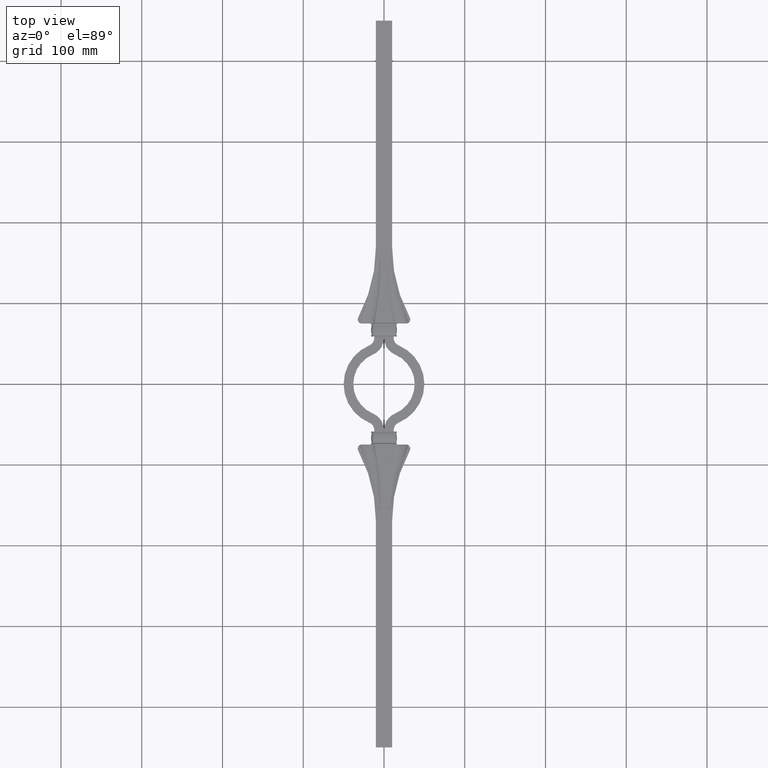
[diagram: clean part render]
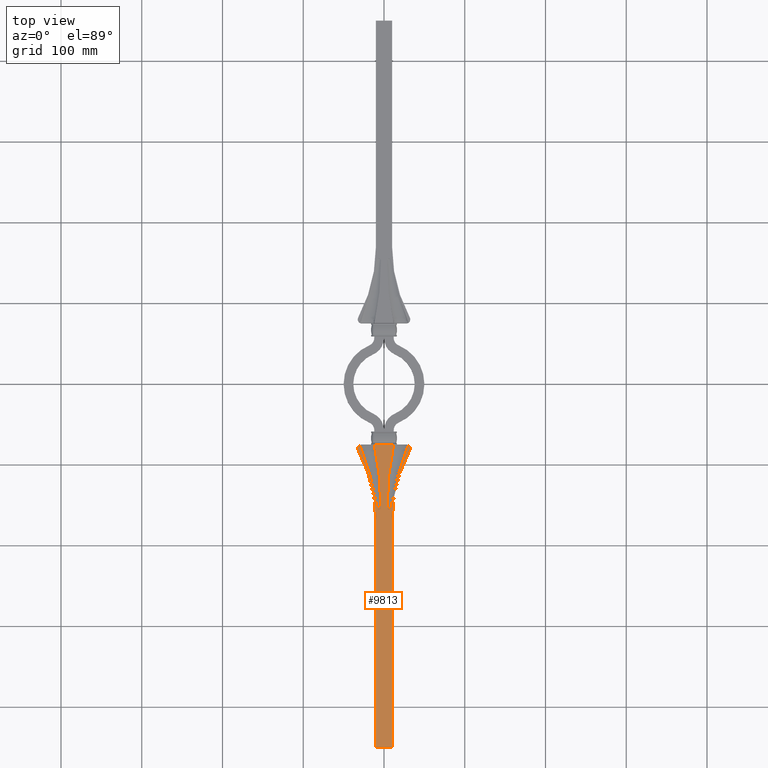
[diagram: same view with one face highlighted and labeled with its STEP entity id]
A machine part, top view. The second image highlights one B-rep face of the part: STEP entity #9813.
In plain terms, the highlighted planar face has unit normal (0, 0, -1).
Its self-contained STEP definition (entity closure, byte-faithful):
#128 = LINE ( 'NONE', #19103, #2792 ) ;
#148 = CARTESIAN_POINT ( 'NONE',  ( 31.91176470588233371, -82.35294117647066514, 5.000000000000000000 ) ) ;
#299 = CARTESIAN_POINT ( 'NONE',  ( 3.965623963951216524, -154.4462280824374432, 4.999999999999998224 ) ) ;
#496 = CARTESIAN_POINT ( 'NONE',  ( 5.135570416108285130, -154.9981774773089569, 5.000000000000000888 ) ) ;
#520 = CARTESIAN_POINT ( 'NONE',  ( -13.04686534027730715, -130.6835292798024284, 5.000000000000001776 ) ) ;
#568 = CARTESIAN_POINT ( 'NONE',  ( 7.926180279954286867, -154.7643624197660301, 4.999963996615838013 ) ) ;
#591 = DIRECTION ( 'NONE',  ( -0.000000000000000000, -0.000000000000000000, -1.000000000000000000 ) ) ;
#655 = CARTESIAN_POINT ( 'NONE',  ( 6.799162393135026683, -155.0000000000001705, 5.000000000001240785 ) ) ;
#744 = CARTESIAN_POINT ( 'NONE',  ( 7.869971688072390670, -154.8037052806284635, 4.999966354518317502 ) ) ;
#770 = EDGE_CURVE ( 'NONE', #19440, #10976, #20119, .T. ) ;
#804 = B_SPLINE_CURVE_WITH_KNOTS ( 'NONE', 3,
 ( #13560, #4018, #9698, #9773, #22862, #11600, #9850, #22938, #15457, #2377, #299, #15535, #19873, #12532, #7666, #5605, #2245, #13236, #16361, #13120, #8166, #3150, #24298, #1758, #17777, #2966, #9044, #5182, #17969, #24413, #22634, #496, #8086, #13597 ),
 .UNSPECIFIED., .F., .F.,
 ( 4, 2, 2, 2, 2, 2, 2, 2, 2, 1, 2, 2, 2, 2, 1, 2, 2, 4 ),
 ( 0.000000000000000000, 0.1250000000002426392, 0.1875000000003466394, 0.2187500000003986256, 0.2343750000004064249, 0.2500000000004142242, 0.3125000000003543832, 0.3750000000002945977, 0.4375000000002347567, 0.4687500000002143286, 0.4843750000002041700, 0.5000000000001939560, 0.6250000000001428857, 0.6875000000001129097, 0.7187500000000974776, 0.7343750000000901501, 0.7500000000000828226, 1.000000000000000000 ),
 .UNSPECIFIED. ) ;
#837 = VERTEX_POINT ( 'NONE', #6536 ) ;
#888 = CIRCLE ( 'NONE', #20988, 5.000000000000007994 ) ;
#915 = CARTESIAN_POINT ( 'NONE',  ( 7.211589345904941162, -154.9852450227280940, 4.999997638428290259 ) ) ;
#958 = CARTESIAN_POINT ( 'NONE',  ( 13.04663174469290254, -130.6846083233393756, 5.000000000000047073 ) ) ;
#1015 = CARTESIAN_POINT ( 'NONE',  ( -3.941527049321892129, -147.2738070828576440, 4.999999999999998224 ) ) ;
#1032 = VECTOR ( 'NONE', #21166, 1000.000000000000000 ) ;
#1074 = VERTEX_POINT ( 'NONE', #148 ) ;
#1095 = CARTESIAN_POINT ( 'NONE',  ( -7.282119413864290181, -101.0639367666828150, 5.000000000000000000 ) ) ;
#1194 = CARTESIAN_POINT ( 'NONE',  ( -8.188882628209363190, -154.4623339231687567, 4.999998515358314854 ) ) ;
#1334 = AXIS2_PLACEMENT_3D ( 'NONE', #13166, #1909, #13088 ) ;
#1364 = CARTESIAN_POINT ( 'NONE',  ( -8.369846276095589843, -153.9566048082628242, 5.000000000000015987 ) ) ;
#1437 = CARTESIAN_POINT ( 'NONE',  ( -5.063771536652758698, -154.9900956607324645, 5.000038404316325291 ) ) ;
#1509 = EDGE_CURVE ( 'NONE', #2531, #9342, #13613, .T. ) ;
#1522 = CARTESIAN_POINT ( 'NONE',  ( -4.021482543813087673, -154.5441743983841434, 5.000007550614006036 ) ) ;
#1605 = CARTESIAN_POINT ( 'NONE',  ( -4.969354628159481813, -154.9835673242953646, 5.000002536696727340 ) ) ;
#1688 = CARTESIAN_POINT ( 'NONE',  ( -4.737584176409249892, -154.9579853146912285, 5.000153453337676801 ) ) ;
#1692 = CARTESIAN_POINT ( 'NONE',  ( -7.831121151077348408, -154.8258042688642888, 5.000010660083647807 ) ) ;
#1758 = CARTESIAN_POINT ( 'NONE',  ( 4.551413117096624106, -154.9163942532572946, 4.999967967209959063 ) ) ;
#1766 = CARTESIAN_POINT ( 'NONE',  ( -4.992899276903014716, -154.9854016029280217, 5.000010088599545099 ) ) ;
#1802 = CARTESIAN_POINT ( 'NONE',  ( -27.47195296059224034, -81.94771305812834328, 5.000000000000002665 ) ) ;
#1853 = EDGE_CURVE ( 'NONE', #24118, #14520, #16663, .T. ) ;
#1909 = DIRECTION ( 'NONE',  ( 0.000000000000000000, -0.000000000000000000, 1.000000000000000000 ) ) ;
#2245 = CARTESIAN_POINT ( 'NONE',  ( 4.215676738443235649, -154.7531744206347071, 4.999951572459591986 ) ) ;
#2377 = CARTESIAN_POINT ( 'NONE',  ( 3.961980872138301191, -154.4387205353516777, 4.999996800281025777 ) ) ;
#2406 = EDGE_CURVE ( 'NONE', #10976, #837, #5306, .T. ) ;
#2463 = CARTESIAN_POINT ( 'NONE',  ( -5.524884413910358560, -155.0000000000000000, 5.000000000000000000 ) ) ;
#2531 = VERTEX_POINT ( 'NONE', #20714 ) ;
#2581 = CARTESIAN_POINT ( 'NONE',  ( -29.90578352800346096, -75.61682699219076653, 5.000000000000000888 ) ) ;
#2646 = CARTESIAN_POINT ( 'NONE',  ( 7.357889261302469563, -154.9717791552320705, 5.000000000000000888 ) ) ;
#2792 = VECTOR ( 'NONE', #15977, 1000.000000000000000 ) ;
#2850 = CARTESIAN_POINT ( 'NONE',  ( 18.89638322145837890, -107.6835420494722513, 5.000000000000001776 ) ) ;
#2966 = CARTESIAN_POINT ( 'NONE',  ( 4.740170772975628388, -154.9564682262032136, 4.999966412021719542 ) ) ;
#3150 = CARTESIAN_POINT ( 'NONE',  ( 4.374070906003847625, -154.8467629935844911, 5.000000000000001776 ) ) ;
#3246 = CARTESIAN_POINT ( 'NONE',  ( -8.201269694154182943, -154.4404845708103551, 4.999981670895587094 ) ) ;
#3254 = CARTESIAN_POINT ( 'NONE',  ( 29.90578352800346451, -75.61682699219078074, 5.000000000000000000 ) ) ;
#3410 = CARTESIAN_POINT ( 'NONE',  ( -8.232281611238894570, -154.3805999419486454, 4.999883108988804281 ) ) ;
#3480 = CIRCLE ( 'NONE', #17874, 5.000000000000007994 ) ;
#3481 = CARTESIAN_POINT ( 'NONE',  ( -4.078422396638333502, -154.6226623556130164, 5.000017349464791927 ) ) ;
#3557 = CARTESIAN_POINT ( 'NONE',  ( -4.552195823899769067, -154.9143415389822565, 5.000037379747007016 ) ) ;
#3609 = CARTESIAN_POINT ( 'NONE',  ( 9.435256655440054985, -87.99521046313290640, 4.999999999999998224 ) ) ;
#3629 = CARTESIAN_POINT ( 'NONE',  ( -4.403627954130869604, -154.8602275226872393, 4.999995709682878875 ) ) ;
#3691 = VERTEX_POINT ( 'NONE', #5280 ) ;
#3769 = CARTESIAN_POINT ( 'NONE',  ( 7.282036358220088879, -101.0645038266207365, 4.999999999999999112 ) ) ;
#3838 = CARTESIAN_POINT ( 'NONE',  ( 4.474168269533989495, -130.7263189135368293, 5.000000000000000888 ) ) ;
#4018 = CARTESIAN_POINT ( 'NONE',  ( 3.848617347009392731, -154.0013132885745790, 4.999999999999997335 ) ) ;
#4080 = ORIENTED_EDGE ( 'NONE', *, *, #17824, .F. ) ;
#4298 = CARTESIAN_POINT ( 'NONE',  ( -196.2500000000003695, -154.9999999999999716, 5.000000000000000000 ) ) ;
#4302 = CARTESIAN_POINT ( 'NONE',  ( 8.268016533100878362, -154.3018457595693178, 4.999975786428982438 ) ) ;
#4401 = B_SPLINE_CURVE_WITH_KNOTS ( 'NONE', 3,
 ( #10215, #655, #15646, #13994, #4458, #11934, #19512, #8230, #915, #17452, #10044, #2646, #17618, #23212, #8402, #10132, #21417, #6257, #15895, #19684, #744, #568, #23372, #23459, #12101, #13829, #11860, #14078, #6179, #19441, #9965, #15568, #19356, #23293, #12015, #8148, #4302, #13906, #15810, #8076, #21258, #13746, #4534 ),
 .UNSPECIFIED., .F., .F.,
 ( 4, 2, 2, 2, 2, 2, 2, 2, 2, 2, 2, 2, 2, 2, 2, 2, 2, 2, 1, 2, 2, 4 ),
 ( 0.000000000000000000, 0.1249999999999136246, 0.1874999999998710198, 0.2187499999998497313, 0.2343749999998376854, 0.2499999999998256395, 0.3749999999997271072, 0.4374999999996784239, 0.4687499999996540545, 0.4999999999996296851, 0.5624999999995966560, 0.5937499999995792255, 0.6249999999995616839, 0.6874999999995267119, 0.7187499999995083932, 0.7343749999994986233, 0.7499999999994888533, 0.8124999999995522471, 0.8437499999995834443, 0.8593749999995990985, 0.8749999999996147526, 1.000000000000000000 ),
 .UNSPECIFIED. ) ;
#4403 = DIRECTION ( 'NONE',  ( -1.000000000000000000, 0.000000000000000000, 0.000000000000000000 ) ) ;
#4458 = CARTESIAN_POINT ( 'NONE',  ( 7.076278301498744483, -154.9937461767659670, 5.000005102248681332 ) ) ;
#4534 = CARTESIAN_POINT ( 'NONE',  ( 8.369848107284010297, -153.9566044168722101, 5.000000000001072920 ) ) ;
#4670 = EDGE_CURVE ( 'NONE', #22282, #24118, #21754, .T. ) ;
#4676 = ORIENTED_EDGE ( 'NONE', *, *, #19343, .F. ) ;
#4741 = CARTESIAN_POINT ( 'NONE',  ( 20.87496705193597180, -101.1957691935674291, 5.000000000000000000 ) ) ;
#4797 = CARTESIAN_POINT ( 'NONE',  ( -4.066255454649413181, -140.6514932256762336, 5.000000000000000888 ) ) ;
#4876 = CARTESIAN_POINT ( 'NONE',  ( -10.65418433901768758, -81.48515730548123770, 4.999999999999999112 ) ) ;
#4961 = CARTESIAN_POINT ( 'NONE',  ( -4.474201774496942008, -130.7256328451458955, 5.000000000000000000 ) ) ;
#5043 = B_SPLINE_CURVE_WITH_KNOTS ( 'NONE', 3,
 ( #19889, #12232, #19642, #958, #16029, #21376, #17662, #14123, #2850, #4741, #17911, #21702, #23596, #12309, #20050, #3254 ),
 .UNSPECIFIED., .F., .F.,
 ( 4, 2, 2, 2, 2, 2, 2, 4 ),
 ( 0.001063238149677896149, 0.02141010717645206937, 0.03158354168983910915, 0.04175697620322620096, 0.05193041071661328584, 0.06210384523000037765, 0.07227727974338746253, 0.08245071425677455434 ),
 .UNSPECIFIED. ) ;
#5182 = CARTESIAN_POINT ( 'NONE',  ( 4.853888699188068756, -154.9723366668225992, 4.999989232610434264 ) ) ;
#5280 = CARTESIAN_POINT ( 'NONE',  ( 29.90578352800346451, -75.61682699219078074, 5.000000000000000000 ) ) ;
#5291 = CARTESIAN_POINT ( 'NONE',  ( -4.959337764658437564, -154.9827470687102107, 5.000000000000000888 ) ) ;
#5297 = PLANE ( 'NONE',  #17614 ) ;
#5299 = CARTESIAN_POINT ( 'NONE',  ( -8.193854688318371160, -154.4536406679349341, 4.999993193936294489 ) ) ;
#5306 = B_SPLINE_CURVE_WITH_KNOTS ( 'NONE', 3,
 ( #5828, #19012, #22392, #3609, #24367, #3769, #11989, #14571, #24209, #22607, #3838, #15034, #11262, #17008 ),
 .UNSPECIFIED., .F., .F.,
 ( 4, 2, 2, 2, 2, 2, 4 ),
 ( 0.000000000000000000, 0.009934312361116222692, 0.01986862472223244538, 0.03973724944446484914, 0.04967156180558107009, 0.05960587416669729105, 0.07947449888892964276 ),
 .UNSPECIFIED. ) ;
#5375 = CARTESIAN_POINT ( 'NONE',  ( -3.983202647285003284, -154.4799712063336870, 4.999999291928923562 ) ) ;
#5455 = CARTESIAN_POINT ( 'NONE',  ( -4.487067852457460759, -154.8930011947112462, 5.000000347583217319 ) ) ;
#5537 = CARTESIAN_POINT ( 'NONE',  ( -196.2500000000003695, -170.0000000000000000, 5.000000000000000000 ) ) ;
#5605 = CARTESIAN_POINT ( 'NONE',  ( 4.178185790780713837, -154.7233401966931865, 5.000000000000000000 ) ) ;
#5611 = CARTESIAN_POINT ( 'NONE',  ( -3.850103109401592505, -153.8959823035247325, 5.000000000007732481 ) ) ;
#5711 = EDGE_CURVE ( 'NONE', #1074, #11700, #23722, .T. ) ;
#5716 = B_SPLINE_CURVE_WITH_KNOTS ( 'NONE', 3,
 ( #11148, #7352, #22252, #10823, #12704, #1437, #9079, #13024, #1766, #1605, #5291, #16646, #1688, #14832, #3557, #5455, #14593, #18385, #3629, #18549, #7103, #20276, #12788, #20354, #10905, #3481, #24058, #1522, #16571, #7182, #5375, #7267, #20432, #20929, #5940, #13426, #5611 ),
 .UNSPECIFIED., .F., .F.,
 ( 4, 2, 2, 2, 2, 2, 2, 2, 1, 2, 2, 2, 2, 2, 2, 2, 2, 2, 4 ),
 ( 0.000000000000000000, 0.1249999999999659439, 0.1874999999999489297, 0.2187499999999409639, 0.2343749999999382161, 0.2499999999999354960, 0.3749999999998900879, 0.4374999999998679390, 0.4687499999998568367, 0.4843749999998583911, 0.4999999999998598899, 0.5624999999998678835, 0.6249999999998757660, 0.6874999999998837596, 0.7187499999998877565, 0.7343749999998900879, 0.7499999999998923084, 0.8749999999999461542, 1.000000000000000000 ),
 .UNSPECIFIED. ) ;
#5828 = CARTESIAN_POINT ( 'NONE',  ( 11.99556631910429338, -74.99999999999998579, 4.999999999999999112 ) ) ;
#5856 = EDGE_CURVE ( 'NONE', #7450, #2531, #128, .T. ) ;
#5940 = CARTESIAN_POINT ( 'NONE',  ( -3.859373283327270698, -154.1051406099595056, 4.999984246217923811 ) ) ;
#6179 = CARTESIAN_POINT ( 'NONE',  ( 8.130164386421029121, -154.5543364041792813, 4.999981418056808735 ) ) ;
#6257 = CARTESIAN_POINT ( 'NONE',  ( 7.750218678783158843, -154.8663817257325945, 4.999993462028319513 ) ) ;
#6536 = CARTESIAN_POINT ( 'NONE',  ( 3.850100905047181499, -153.8959823676001974, 5.000000000000000888 ) ) ;
#6962 = ORIENTED_EDGE ( 'NONE', *, *, #1853, .F. ) ;
#7035 = CARTESIAN_POINT ( 'NONE',  ( -8.132025910613613462, -154.5530388366627506, 4.999980909498882298 ) ) ;
#7103 = CARTESIAN_POINT ( 'NONE',  ( -4.338052052215489063, -154.8301070446215704, 5.000000000000000000 ) ) ;
#7182 = CARTESIAN_POINT ( 'NONE',  ( -3.995543731210860816, -154.5018379909814712, 4.999999695980231529 ) ) ;
#7267 = CARTESIAN_POINT ( 'NONE',  ( -3.976202287302884386, -154.4668616728823451, 4.999999999999999112 ) ) ;
#7352 = CARTESIAN_POINT ( 'NONE',  ( -5.425226360417427784, -155.0000000000000000, 4.999999999957632113 ) ) ;
#7388 = CARTESIAN_POINT ( 'NONE',  ( -28.66465569825735926, -78.77288485077676228, 4.999999999999997335 ) ) ;
#7404 = DIRECTION ( 'NONE',  ( -1.362997016838919825E-16, -1.000000000000000000, 0.000000000000000000 ) ) ;
#7435 = DIRECTION ( 'NONE',  ( 0.000000000000000000, 0.000000000000000000, -1.000000000000000000 ) ) ;
#7450 = VERTEX_POINT ( 'NONE', #22999 ) ;
#7518 = CARTESIAN_POINT ( 'NONE',  ( -7.871026687478063444, -154.8020627131309652, 4.999997389408848747 ) ) ;
#7595 = CARTESIAN_POINT ( 'NONE',  ( -8.045622032347242936, -154.6580471216138619, 4.999993685543806521 ) ) ;
#7624 = CARTESIAN_POINT ( 'NONE',  ( -196.2500000000003695, -170.0000000000000000, 5.000000000000000000 ) ) ;
#7666 = CARTESIAN_POINT ( 'NONE',  ( 4.109133004302524483, -154.6574875651803040, 4.999999999999998224 ) ) ;
#7756 = LINE ( 'NONE', #18358, #13345 ) ;
#7868 = CARTESIAN_POINT ( 'NONE',  ( -16.17235635153362949, -117.4835181931385932, 5.000000000000000000 ) ) ;
#8025 = EDGE_CURVE ( 'NONE', #8082, #19670, #4401, .T. ) ;
#8076 = CARTESIAN_POINT ( 'NONE',  ( 8.294102886076400338, -154.2338134458151160, 5.000000000000001776 ) ) ;
#8082 = VERTEX_POINT ( 'NONE', #10630 ) ;
#8086 = CARTESIAN_POINT ( 'NONE',  ( 5.327280271678336732, -155.0000000000000000, 4.999999999981433518 ) ) ;
#8090 = ORIENTED_EDGE ( 'NONE', *, *, #4670, .F. ) ;
#8148 = CARTESIAN_POINT ( 'NONE',  ( 8.254102737150246227, -154.3339432849012098, 4.999965063517867847 ) ) ;
#8166 = CARTESIAN_POINT ( 'NONE',  ( 4.361624020661886370, -154.8407700689843978, 4.999996059942182214 ) ) ;
#8230 = CARTESIAN_POINT ( 'NONE',  ( 7.200383923119862750, -154.9861180574261823, 4.999996262923906087 ) ) ;
#8402 = CARTESIAN_POINT ( 'NONE',  ( 7.628335715910177228, -154.9129244956912714, 4.999935402762493375 ) ) ;
#8423 = AXIS2_PLACEMENT_3D ( 'NONE', #7624, #15029, #20795 ) ;
#8515 = VERTEX_POINT ( 'NONE', #2463 ) ;
#8555 = ORIENTED_EDGE ( 'NONE', *, *, #24178, .F. ) ;
#8666 = CARTESIAN_POINT ( 'NONE',  ( -11.99556631910429161, -75.00000000000000000, 5.000000000000000000 ) ) ;
#8766 = CARTESIAN_POINT ( 'NONE',  ( -8.276616460588110513, -154.2807237659062594, 4.999755788964489689 ) ) ;
#8824 = CARTESIAN_POINT ( 'NONE',  ( -10.94614546052817516, -140.6380072406970498, 5.000000000000000888 ) ) ;
#8847 = CARTESIAN_POINT ( 'NONE',  ( -8.350583618383449647, -154.0554475477909762, 5.000000000000023093 ) ) ;
#8907 = CARTESIAN_POINT ( 'NONE',  ( -8.369846276095589843, -153.9566048082628242, 5.000000000000015987 ) ) ;
#9044 = CARTESIAN_POINT ( 'NONE',  ( 4.815535316719543601, -154.9674045013782973, 4.999980697962675968 ) ) ;
#9079 = CARTESIAN_POINT ( 'NONE',  ( -5.040096321250082667, -154.9886875640189885, 5.000029403370739089 ) ) ;
#9094 = EDGE_LOOP ( 'NONE', ( #20250, #20525, #10138, #13407, #12396, #12288, #20379, #14670, #21471, #16131, #4080, #12734, #21338, #4676, #8555, #9638, #6962, #8090 ) ) ;
#9342 = VERTEX_POINT ( 'NONE', #9677 ) ;
#9352 = B_SPLINE_CURVE_WITH_KNOTS ( 'NONE', 3,
 ( #19785, #1015, #4797, #4961, #21753, #18124, #19944, #12367, #1095, #14253, #16179, #4876, #18044, #8666 ),
 .UNSPECIFIED., .F., .F.,
 ( 4, 2, 2, 2, 2, 2, 4 ),
 ( 0.001104118336523353524, 0.02097253915627313170, 0.03090674956614806318, 0.04084095997602300160, 0.06070938079577280905, 0.07064359120564771277, 0.08057780161552259568 ),
 .UNSPECIFIED. ) ;
#9409 = CARTESIAN_POINT ( 'NONE',  ( -6.704089015590581013, -155.0000000000000000, 5.000000000000000000 ) ) ;
#9638 = ORIENTED_EDGE ( 'NONE', *, *, #15806, .T. ) ;
#9677 = CARTESIAN_POINT ( 'NONE',  ( -31.91176470588235503, -82.35294117647059409, 5.000000000000000000 ) ) ;
#9698 = CARTESIAN_POINT ( 'NONE',  ( 3.859407661232425735, -154.1053547134688131, 4.999975483018065603 ) ) ;
#9773 = CARTESIAN_POINT ( 'NONE',  ( 3.891226762359575986, -154.2485177527530311, 4.999927734278702296 ) ) ;
#9813 = ADVANCED_FACE ( 'NONE', ( #17125 ), #5297, .F. ) ;
#9850 = CARTESIAN_POINT ( 'NONE',  ( 3.935462048286683334, -154.3793295323155803, 4.999962334848924606 ) ) ;
#9965 = CARTESIAN_POINT ( 'NONE',  ( 8.156820883255040400, -154.5147736071453721, 4.999991580263911217 ) ) ;
#10044 = CARTESIAN_POINT ( 'NONE',  ( 7.243575453143122900, -154.9825423240127975, 5.000000000000001776 ) ) ;
#10046 = CARTESIAN_POINT ( 'NONE',  ( -6.704089015590581013, -155.0000000000000000, 5.000000000000000000 ) ) ;
#10132 = CARTESIAN_POINT ( 'NONE',  ( 7.690211246098844988, -154.8910067185260289, 4.999965170084887944 ) ) ;
#10138 = ORIENTED_EDGE ( 'NONE', *, *, #5856, .F. ) ;
#10215 = CARTESIAN_POINT ( 'NONE',  ( 6.704073158307038760, -155.0000000000000000, 5.000000000000000000 ) ) ;
#10630 = CARTESIAN_POINT ( 'NONE',  ( 6.704073158307038760, -155.0000000000000000, 5.000000000000000000 ) ) ;
#10823 = CARTESIAN_POINT ( 'NONE',  ( -5.182838966738153808, -154.9955456612415503, 5.000064313099621849 ) ) ;
#10828 = CARTESIAN_POINT ( 'NONE',  ( -8.075246736465544473, -154.6249011140212133, 4.999983852107556359 ) ) ;
#10838 = CARTESIAN_POINT ( 'NONE',  ( 9.999999999999998224, -450.0000000000000000, 5.000000000000000000 ) ) ;
#10905 = CARTESIAN_POINT ( 'NONE',  ( -4.109798702775242951, -154.6580963423483581, 4.999999999999998224 ) ) ;
#10976 = VERTEX_POINT ( 'NONE', #22017 ) ;
#10999 = CARTESIAN_POINT ( 'NONE',  ( -7.079083305676154403, -154.9980688803117914, 4.999999999999999112 ) ) ;
#11072 = CARTESIAN_POINT ( 'NONE',  ( -7.306840426404083821, -154.9761545354650707, 4.999994523428433091 ) ) ;
#11148 = CARTESIAN_POINT ( 'NONE',  ( -5.524884413910358560, -155.0000000000000000, 5.000000000000000000 ) ) ;
#11231 = CARTESIAN_POINT ( 'NONE',  ( -7.982070357511826586, -154.7206889019596474, 5.000000000000000000 ) ) ;
#11262 = CARTESIAN_POINT ( 'NONE',  ( 3.941525040750626374, -147.2739525905449796, 5.000000000000002665 ) ) ;
#11305 = EDGE_CURVE ( 'NONE', #19670, #3691, #5043, .T. ) ;
#11421 = VERTEX_POINT ( 'NONE', #10838 ) ;
#11600 = CARTESIAN_POINT ( 'NONE',  ( 3.927294459486234235, -154.3585275621808250, 4.999949172084273918 ) ) ;
#11661 = CARTESIAN_POINT ( 'NONE',  ( -15.33948263790184008, -120.7713928348293138, 5.000000000000000888 ) ) ;
#11672 = EDGE_CURVE ( 'NONE', #3691, #1074, #888, .T. ) ;
#11700 = VERTEX_POINT ( 'NONE', #21270 ) ;
#11860 = CARTESIAN_POINT ( 'NONE',  ( 8.074032945165239283, -154.6275028510471259, 4.999980413023869197 ) ) ;
#11934 = CARTESIAN_POINT ( 'NONE',  ( 7.144163338439147637, -154.9900050189272918, 4.999997463477654946 ) ) ;
#11989 = CARTESIAN_POINT ( 'NONE',  ( 6.383646114910948022, -107.6290771002282440, 4.999999999999997335 ) ) ;
#12015 = CARTESIAN_POINT ( 'NONE',  ( 8.225190650981872409, -154.3965307603946258, 4.999963442536571989 ) ) ;
#12101 = CARTESIAN_POINT ( 'NONE',  ( 7.997898877192533895, -154.7052284759734277, 4.999999999999999112 ) ) ;
#12232 = CARTESIAN_POINT ( 'NONE',  ( 9.672024829248400124, -147.3004954520926049, 5.000000000000000888 ) ) ;
#12288 = ORIENTED_EDGE ( 'NONE', *, *, #5711, .F. ) ;
#12309 = CARTESIAN_POINT ( 'NONE',  ( 27.47184621777901015, -81.94799723079840703, 5.000000000000001776 ) ) ;
#12367 = CARTESIAN_POINT ( 'NONE',  ( -6.383709024410685551, -107.6285634733770848, 5.000000000000000888 ) ) ;
#12396 = ORIENTED_EDGE ( 'NONE', *, *, #20434, .F. ) ;
#12532 = CARTESIAN_POINT ( 'NONE',  ( 4.078570491319283953, -154.6228520063822600, 5.000019396657356729 ) ) ;
#12704 = CARTESIAN_POINT ( 'NONE',  ( -5.135027362825807629, -154.9937888678017543, 5.000059297008458081 ) ) ;
#12734 = ORIENTED_EDGE ( 'NONE', *, *, #2406, .F. ) ;
#12788 = CARTESIAN_POINT ( 'NONE',  ( -4.215072978193533437, -154.7527291848708728, 4.999943778653188176 ) ) ;
#12815 = LINE ( 'NONE', #17280, #1032 ) ;
#13024 = CARTESIAN_POINT ( 'NONE',  ( -5.004685567575794636, -154.9862622701983241, 5.000015164220054764 ) ) ;
#13088 = DIRECTION ( 'NONE',  ( 1.000000000000000000, 0.000000000000000000, 0.000000000000000000 ) ) ;
#13109 = CARTESIAN_POINT ( 'NONE',  ( -6.896182023087134461, -154.9999999999999716, 4.999999999999998224 ) ) ;
#13120 = CARTESIAN_POINT ( 'NONE',  ( 4.339595237719461984, -154.8296000361155507, 4.999985499025223490 ) ) ;
#13166 = CARTESIAN_POINT ( 'NONE',  ( 196.2500000000003695, -170.0000000000000000, 5.000000000000000000 ) ) ;
#13236 = CARTESIAN_POINT ( 'NONE',  ( 4.275908487626702836, -154.7933534044452131, 4.999951558363381565 ) ) ;
#13295 = CARTESIAN_POINT ( 'NONE',  ( -20.83678052712910400, -101.1802508699184528, 5.000000000000001776 ) ) ;
#13334 = DIRECTION ( 'NONE',  ( -1.000000000000000000, 1.224646799147353207E-16, 0.000000000000000000 ) ) ;
#13345 = VECTOR ( 'NONE', #7404, 1000.000000000000000 ) ;
#13407 = ORIENTED_EDGE ( 'NONE', *, *, #19669, .F. ) ;
#13426 = CARTESIAN_POINT ( 'NONE',  ( -3.848623244263999155, -154.0011810366845850, 5.000000000000000000 ) ) ;
#13560 = CARTESIAN_POINT ( 'NONE',  ( 3.850100905047181499, -153.8959823676001974, 5.000000000000000888 ) ) ;
#13597 = CARTESIAN_POINT ( 'NONE',  ( 5.524881609996840304, -155.0000000000000000, 5.000000000000000000 ) ) ;
#13613 = CIRCLE ( 'NONE', #8423, 186.2500000000003126 ) ;
#13622 = CARTESIAN_POINT ( 'NONE',  ( -13.77831717949568890, -127.3717743822335962, 5.000000000000000000 ) ) ;
#13746 = CARTESIAN_POINT ( 'NONE',  ( 8.351367785231367691, -154.0514610734685448, 5.000000000000001776 ) ) ;
#13829 = CARTESIAN_POINT ( 'NONE',  ( 8.044351355166842410, -154.6604711164757475, 4.999999999999999112 ) ) ;
#13906 = CARTESIAN_POINT ( 'NONE',  ( 8.281053916438951390, -154.2686490849576728, 4.999990039514490725 ) ) ;
#13994 = CARTESIAN_POINT ( 'NONE',  ( 7.030664728937284558, -154.9955219381338907, 5.000011777952638958 ) ) ;
#14078 = CARTESIAN_POINT ( 'NONE',  ( 8.116401587050535937, -154.5732284672421599, 4.999978539261201504 ) ) ;
#14123 = CARTESIAN_POINT ( 'NONE',  ( 17.95218777891637529, -110.9412036713316354, 5.000000000000000000 ) ) ;
#14253 = CARTESIAN_POINT ( 'NONE',  ( -8.866273404272579484, -91.25713508463338997, 5.000000000000000888 ) ) ;
#14520 = VERTEX_POINT ( 'NONE', #10046 ) ;
#14571 = CARTESIAN_POINT ( 'NONE',  ( 5.372386883976738581, -117.5112101177227260, 5.000000000000000000 ) ) ;
#14593 = CARTESIAN_POINT ( 'NONE',  ( -4.455122740269199966, -154.8815735293476337, 4.999988429713144278 ) ) ;
#14601 = CARTESIAN_POINT ( 'NONE',  ( -8.324068206422671423, -154.1505296477506022, 4.999784192893153900 ) ) ;
#14670 = ORIENTED_EDGE ( 'NONE', *, *, #11305, .F. ) ;
#14686 = CARTESIAN_POINT ( 'NONE',  ( -8.259519110992981084, -154.3220870261512516, 4.999792118710189470 ) ) ;
#14763 = CARTESIAN_POINT ( 'NONE',  ( -7.629755565086086655, -154.9147696813238326, 4.999937404095120108 ) ) ;
#14802 = CARTESIAN_POINT ( 'NONE',  ( 5.524881609996840304, -155.0000000000000000, 5.000000000000000000 ) ) ;
#14832 = CARTESIAN_POINT ( 'NONE',  ( -4.597262084375516089, -154.9265477042255839, 5.000081836353969855 ) ) ;
#14840 = CARTESIAN_POINT ( 'NONE',  ( -7.808739888134605067, -154.8379229500299346, 5.000000000000001776 ) ) ;
#14947 = CARTESIAN_POINT ( 'NONE',  ( -25.16593234182545302, -88.32623465581102096, 5.000000000000001776 ) ) ;
#15029 = DIRECTION ( 'NONE',  ( 0.000000000000000000, -0.000000000000000000, 1.000000000000000000 ) ) ;
#15034 = CARTESIAN_POINT ( 'NONE',  ( 4.066234517338261689, -140.6522610004297178, 5.000000000000000888 ) ) ;
#15401 = VERTEX_POINT ( 'NONE', #16009 ) ;
#15457 = CARTESIAN_POINT ( 'NONE',  ( 3.952870941459427634, -154.4193408215190573, 4.999987476417523169 ) ) ;
#15535 = CARTESIAN_POINT ( 'NONE',  ( 3.994628113720457563, -154.5028691684681235, 5.000000000000000888 ) ) ;
#15568 = CARTESIAN_POINT ( 'NONE',  ( 8.169803333786196831, -154.4943066008134167, 4.999997082390923886 ) ) ;
#15581 = CARTESIAN_POINT ( 'NONE',  ( 27.50000000000000000, -80.00000000000000000, 5.000000000000000000 ) ) ;
#15646 = CARTESIAN_POINT ( 'NONE',  ( 6.892683730841642209, -154.9993693190506292, 5.000017976634584471 ) ) ;
#15806 = EDGE_CURVE ( 'NONE', #8515, #14520, #21483, .T. ) ;
#15810 = CARTESIAN_POINT ( 'NONE',  ( 8.289542661836696524, -154.2462877546755919, 4.999997355476831551 ) ) ;
#15895 = CARTESIAN_POINT ( 'NONE',  ( 7.768082197960996638, -154.8582431267940933, 5.000000000000000888 ) ) ;
#15977 = DIRECTION ( 'NONE',  ( -1.362997016838919825E-16, 1.000000000000000000, 0.000000000000000000 ) ) ;
#16009 = CARTESIAN_POINT ( 'NONE',  ( -3.850103109401592505, -153.8959823035247325, 5.000000000007732481 ) ) ;
#16029 = CARTESIAN_POINT ( 'NONE',  ( 13.77806467132802837, -127.3729171794538360, 5.000000000000000888 ) ) ;
#16101 = CARTESIAN_POINT ( 'NONE',  ( -8.369846276095589843, -153.9566048082628242, 5.000000000000015987 ) ) ;
#16131 = ORIENTED_EDGE ( 'NONE', *, *, #22461, .T. ) ;
#16179 = CARTESIAN_POINT ( 'NONE',  ( -9.435335347233456460, -87.99476970336580450, 5.000000000000000000 ) ) ;
#16256 = DIRECTION ( 'NONE',  ( -1.000000000000000000, -1.224646799147353207E-16, 0.000000000000000000 ) ) ;
#16361 = CARTESIAN_POINT ( 'NONE',  ( 4.307027384048626395, -154.8123047587116048, 4.999965259225207070 ) ) ;
#16426 = CARTESIAN_POINT ( 'NONE',  ( -8.187003675361903987, -154.4655867549450932, 5.000000000000000888 ) ) ;
#16571 = CARTESIAN_POINT ( 'NONE',  ( -4.001897477740866904, -154.5125742505534276, 5.000000821887127245 ) ) ;
#16646 = CARTESIAN_POINT ( 'NONE',  ( -4.837961960991084887, -154.9720563878281325, 5.000000000000002665 ) ) ;
#16655 = CARTESIAN_POINT ( 'NONE',  ( -7.379875115577295475, -154.9668995036243189, 4.999973057156826606 ) ) ;
#16663 = B_SPLINE_CURVE_WITH_KNOTS ( 'NONE', 3,
 ( #1364, #8847, #14601, #8766, #14686, #3410, #23745, #3246, #5299, #1194, #16426, #18470, #7035, #22098, #10828, #7595, #22500, #11231, #22345, #22570, #7518, #1692, #14840, #24393, #14763, #16973, #16737, #16655, #24237, #11072, #22260, #20685, #10999, #13109, #9409 ),
 .UNSPECIFIED., .F., .F.,
 ( 4, 2, 2, 1, 1, 2, 2, 2, 2, 2, 2, 2, 2, 2, 2, 1, 2, 2, 4 ),
 ( 0.000000000000000000, 0.1249999999997323807, 0.1874999999996158073, 0.2187499999995575206, 0.2343749999995098088, 0.2421874999995047018, 0.2499999999994995670, 0.3124999999995436428, 0.3437499999995649591, 0.3749999999995862754, 0.4374999999996025402, 0.4687499999996225242, 0.4999999999996425082, 0.6249999999997234434, 0.6874999999997645217, 0.7187499999997850608, 0.7343749999997979394, 0.7499999999998109290, 1.000000000000000000 ),
 .UNSPECIFIED. ) ;
#16737 = CARTESIAN_POINT ( 'NONE',  ( -7.450903611461936471, -154.9557866222272935, 4.999949813241664209 ) ) ;
#16767 = CARTESIAN_POINT ( 'NONE',  ( -29.90578352800346096, -75.61682699219076653, 5.000000000000000888 ) ) ;
#16894 = EDGE_CURVE ( 'NONE', #9342, #22282, #3480, .T. ) ;
#16973 = CARTESIAN_POINT ( 'NONE',  ( -7.496732417092800027, -154.9468940436358366, 4.999938005585873313 ) ) ;
#17008 = CARTESIAN_POINT ( 'NONE',  ( 3.850100905047181499, -153.8959823676001974, 5.000000000000000888 ) ) ;
#17105 = VECTOR ( 'NONE', #16256, 1000.000000000000000 ) ;
#17125 = FACE_OUTER_BOUND ( 'NONE', #9094, .T. ) ;
#17280 = CARTESIAN_POINT ( 'NONE',  ( -9.999999999999998224, -450.0000000000000000, 5.000000000000000000 ) ) ;
#17393 = DIRECTION ( 'NONE',  ( -0.000000000000000000, -0.000000000000000000, -1.000000000000000000 ) ) ;
#17440 = CARTESIAN_POINT ( 'NONE',  ( 8.369848107284010297, -153.9566044168722101, 5.000000000001072920 ) ) ;
#17452 = CARTESIAN_POINT ( 'NONE',  ( 7.233960466290475289, -154.9833840918688566, 5.000000272274077950 ) ) ;
#17486 = DIRECTION ( 'NONE',  ( 1.000000000000000000, 0.000000000000000000, 0.000000000000000000 ) ) ;
#17614 = AXIS2_PLACEMENT_3D ( 'NONE', #5537, #7435, #22415 ) ;
#17618 = CARTESIAN_POINT ( 'NONE',  ( 7.452693002511797893, -154.9575418194708902, 4.999920970095161010 ) ) ;
#17662 = CARTESIAN_POINT ( 'NONE',  ( 16.17173934107077216, -117.4858898267804221, 5.000000000000000000 ) ) ;
#17751 = VECTOR ( 'NONE', #17486, 1000.000000000000000 ) ;
#17777 = CARTESIAN_POINT ( 'NONE',  ( 4.691715870879059835, -154.9477485949191475, 4.999961333489391535 ) ) ;
#17824 = EDGE_CURVE ( 'NONE', #837, #21634, #804, .T. ) ;
#17874 = AXIS2_PLACEMENT_3D ( 'NONE', #21352, #591, #21117 ) ;
#17911 = CARTESIAN_POINT ( 'NONE',  ( 21.90836777486454423, -97.96535690691437992, 4.999999999999998224 ) ) ;
#17969 = CARTESIAN_POINT ( 'NONE',  ( 4.893278684054030769, -154.9765469565735145, 4.999995793092741891 ) ) ;
#18044 = CARTESIAN_POINT ( 'NONE',  ( -11.30261090956467385, -78.23813512742033538, 5.000000000000001776 ) ) ;
#18124 = CARTESIAN_POINT ( 'NONE',  ( -5.095152143719272608, -120.8110165117965096, 5.000000000000000000 ) ) ;
#18358 = CARTESIAN_POINT ( 'NONE',  ( 9.999999999999998224, -450.0000000000000000, 5.000000000000000000 ) ) ;
#18385 = CARTESIAN_POINT ( 'NONE',  ( -4.424102133424230310, -154.8689324752018024, 4.999990854886479319 ) ) ;
#18470 = CARTESIAN_POINT ( 'NONE',  ( -8.158780451548349077, -154.5135030813046058, 5.000000000000000888 ) ) ;
#18549 = CARTESIAN_POINT ( 'NONE',  ( -4.394823556584204205, -154.8563511798575689, 4.999999999999999112 ) ) ;
#19012 = CARTESIAN_POINT ( 'NONE',  ( 11.30261319388152863, -78.23812445295762075, 5.000000000000000000 ) ) ;
#19103 = CARTESIAN_POINT ( 'NONE',  ( -9.999999999999998224, -450.0000000000000000, 5.000000000000000000 ) ) ;
#19343 = EDGE_CURVE ( 'NONE', #15401, #19440, #9352, .T. ) ;
#19356 = CARTESIAN_POINT ( 'NONE',  ( 8.176981523169816413, -154.4825480916148308, 5.000000000000000000 ) ) ;
#19440 = VERTEX_POINT ( 'NONE', #20342 ) ;
#19441 = CARTESIAN_POINT ( 'NONE',  ( 8.150229240298051181, -154.5248123745240321, 4.999988714736775641 ) ) ;
#19512 = CARTESIAN_POINT ( 'NONE',  ( 7.166702648854620605, -154.9885777034826901, 4.999995476419701212 ) ) ;
#19642 = CARTESIAN_POINT ( 'NONE',  ( 10.94604293127849637, -140.6385488439672429, 5.000000000000047073 ) ) ;
#19669 = EDGE_CURVE ( 'NONE', #11421, #7450, #12815, .T. ) ;
#19670 = VERTEX_POINT ( 'NONE', #17440 ) ;
#19684 = CARTESIAN_POINT ( 'NONE',  ( 7.830416418857709004, -154.8271159501510397, 5.000000000000001776 ) ) ;
#19785 = CARTESIAN_POINT ( 'NONE',  ( -3.850103109401592505, -153.8959823035247325, 5.000000000007732481 ) ) ;
#19873 = CARTESIAN_POINT ( 'NONE',  ( 4.020870157197681038, -154.5451220682379869, 5.000036073383885338 ) ) ;
#19889 = CARTESIAN_POINT ( 'NONE',  ( 8.369848107284010297, -153.9566044168722101, 5.000000000001072920 ) ) ;
#19940 = CARTESIAN_POINT ( 'NONE',  ( -196.2500000000003695, -155.0000000000000284, 5.000000000000000000 ) ) ;
#19944 = CARTESIAN_POINT ( 'NONE',  ( -5.372424261954931168, -117.5107942955538931, 5.000000000000001776 ) ) ;
#20050 = CARTESIAN_POINT ( 'NONE',  ( 28.66460864057637181, -78.77300451352211041, 5.000000000000000888 ) ) ;
#20119 = LINE ( 'NONE', #21051, #17751 ) ;
#20250 = ORIENTED_EDGE ( 'NONE', *, *, #16894, .F. ) ;
#20276 = CARTESIAN_POINT ( 'NONE',  ( -4.295241757372811442, -154.8063104155427254, 4.999943225782853773 ) ) ;
#20342 = CARTESIAN_POINT ( 'NONE',  ( -11.99556631910429161, -75.00000000000000000, 5.000000000000000000 ) ) ;
#20354 = CARTESIAN_POINT ( 'NONE',  ( -4.176900009836644223, -154.7221687877912188, 4.999999999999998224 ) ) ;
#20379 = ORIENTED_EDGE ( 'NONE', *, *, #11672, .F. ) ;
#20432 = CARTESIAN_POINT ( 'NONE',  ( -3.933165849998236485, -154.3827879435162345, 5.000000000000001776 ) ) ;
#20434 = EDGE_CURVE ( 'NONE', #11700, #11421, #7756, .T. ) ;
#20525 = ORIENTED_EDGE ( 'NONE', *, *, #1509, .F. ) ;
#20685 = CARTESIAN_POINT ( 'NONE',  ( -7.268015396528356931, -154.9802389574726362, 5.000000000000000888 ) ) ;
#20714 = CARTESIAN_POINT ( 'NONE',  ( -10.00000000000006395, -170.0000000000000284, 5.000000000000000000 ) ) ;
#20795 = DIRECTION ( 'NONE',  ( -1.000000000000000000, 0.000000000000000000, 0.000000000000000000 ) ) ;
#20929 = CARTESIAN_POINT ( 'NONE',  ( -3.901756815850890625, -154.2960123846465308, 4.999928357084137076 ) ) ;
#20988 = AXIS2_PLACEMENT_3D ( 'NONE', #15581, #17393, #4403 ) ;
#21051 = CARTESIAN_POINT ( 'NONE',  ( -27.50000000000000000, -75.00000000000000000, 5.000000000000000000 ) ) ;
#21117 = DIRECTION ( 'NONE',  ( 1.000000000000000000, 0.000000000000000000, 0.000000000000000000 ) ) ;
#21166 = DIRECTION ( 'NONE',  ( -1.000000000000000000, 0.000000000000000000, -0.000000000000000000 ) ) ;
#21186 = VECTOR ( 'NONE', #13334, 1000.000000000000000 ) ;
#21258 = CARTESIAN_POINT ( 'NONE',  ( 8.326685090483127993, -154.1417858901996851, 5.000000000000003553 ) ) ;
#21270 = CARTESIAN_POINT ( 'NONE',  ( 10.00000000000003730, -169.9999999999999716, 5.000000000000000000 ) ) ;
#21338 = ORIENTED_EDGE ( 'NONE', *, *, #770, .F. ) ;
#21352 = CARTESIAN_POINT ( 'NONE',  ( -27.50000000000000000, -80.00000000000000000, 5.000000000000000000 ) ) ;
#21376 = CARTESIAN_POINT ( 'NONE',  ( 15.33893155232052941, -120.7736475543639045, 5.000000000000000888 ) ) ;
#21417 = CARTESIAN_POINT ( 'NONE',  ( 7.710461599353494400, -154.8831737704674936, 4.999976045922505108 ) ) ;
#21471 = ORIENTED_EDGE ( 'NONE', *, *, #8025, .F. ) ;
#21483 = LINE ( 'NONE', #4298, #21186 ) ;
#21634 = VERTEX_POINT ( 'NONE', #14802 ) ;
#21702 = CARTESIAN_POINT ( 'NONE',  ( 24.05310285803236070, -91.53070927640611387, 5.000000000000000888 ) ) ;
#21753 = CARTESIAN_POINT ( 'NONE',  ( -4.647065514988586443, -127.4185468190704711, 4.999999999999998224 ) ) ;
#21754 = B_SPLINE_CURVE_WITH_KNOTS ( 'NONE', 3,
 ( #16767, #7388, #1802, #14947, #22846, #13295, #22758, #7868, #11661, #13622, #520, #8824, #23876, #8907 ),
 .UNSPECIFIED., .F., .F.,
 ( 4, 2, 2, 2, 2, 2, 4 ),
 ( 0.0006630706660943519633, 0.01083704948622537211, 0.02101102830635639268, 0.04135898594661847200, 0.05153296476674949778, 0.06170694358688046804, 0.08205490122714240164 ),
 .UNSPECIFIED. ) ;
#22017 = CARTESIAN_POINT ( 'NONE',  ( 11.99556631910429338, -74.99999999999998579, 4.999999999999999112 ) ) ;
#22098 = CARTESIAN_POINT ( 'NONE',  ( -8.089714210087709745, -154.6075336955172475, 4.999980317764191717 ) ) ;
#22125 = LINE ( 'NONE', #19940, #17105 ) ;
#22252 = CARTESIAN_POINT ( 'NONE',  ( -5.327378869735958311, -154.9993602155192036, 5.000050532650576862 ) ) ;
#22260 = CARTESIAN_POINT ( 'NONE',  ( -7.282015347787528903, -154.9788355748598292, 4.999998725567937896 ) ) ;
#22282 = VERTEX_POINT ( 'NONE', #2581 ) ;
#22345 = CARTESIAN_POINT ( 'NONE',  ( -7.946787003008459749, -154.7498570979059025, 4.999970471443735853 ) ) ;
#22392 = CARTESIAN_POINT ( 'NONE',  ( 10.65409518821519086, -81.48561296002652909, 4.999999999999999112 ) ) ;
#22415 = DIRECTION ( 'NONE',  ( -1.000000000000000000, 0.000000000000000000, 0.000000000000000000 ) ) ;
#22461 = EDGE_CURVE ( 'NONE', #8082, #21634, #22125, .T. ) ;
#22500 = CARTESIAN_POINT ( 'NONE',  ( -8.031426646542310976, -154.6728943884408238, 5.000000000000000000 ) ) ;
#22570 = CARTESIAN_POINT ( 'NONE',  ( -7.890400808264115717, -154.7895208138097303, 4.999985664549153164 ) ) ;
#22607 = CARTESIAN_POINT ( 'NONE',  ( 4.647021765255375136, -127.4192935923789349, 5.000000000000000000 ) ) ;
#22634 = CARTESIAN_POINT ( 'NONE',  ( 4.934807890754786541, -154.9806004170331732, 5.000000000000000000 ) ) ;
#22758 = CARTESIAN_POINT ( 'NONE',  ( -18.84312687688530019, -107.6664400832484745, 5.000000000000000000 ) ) ;
#22846 = CARTESIAN_POINT ( 'NONE',  ( -24.05351156489238917, -91.52952749294759371, 5.000000000000000888 ) ) ;
#22862 = CARTESIAN_POINT ( 'NONE',  ( 3.904380754045948088, -154.2941276764677809, 4.999923698999153565 ) ) ;
#22938 = CARTESIAN_POINT ( 'NONE',  ( 3.948429208063939821, -154.4094705289122942, 4.999981348631059141 ) ) ;
#22999 = CARTESIAN_POINT ( 'NONE',  ( -9.999999999999998224, -450.0000000000000000, 5.000000000000000000 ) ) ;
#23212 = CARTESIAN_POINT ( 'NONE',  ( 7.585587944399676097, -154.9254271987429945, 4.999920631799970927 ) ) ;
#23293 = CARTESIAN_POINT ( 'NONE',  ( 8.204475713615904553, -154.4361024616123643, 5.000000000000000000 ) ) ;
#23372 = CARTESIAN_POINT ( 'NONE',  ( 7.944389847601627253, -154.7505456270021966, 4.999970306524766706 ) ) ;
#23459 = CARTESIAN_POINT ( 'NONE',  ( 7.979716374070992657, -154.7214919309218715, 4.999988327218356510 ) ) ;
#23596 = CARTESIAN_POINT ( 'NONE',  ( 25.16573552833383332, -88.32679013036462834, 5.000000000000002665 ) ) ;
#23722 = CIRCLE ( 'NONE', #1334, 186.2500000000003126 ) ;
#23745 = CARTESIAN_POINT ( 'NONE',  ( -8.218263811816040487, -154.4089775367184814, 4.999935946846068013 ) ) ;
#23876 = CARTESIAN_POINT ( 'NONE',  ( -9.672069947707761628, -147.3002648453992265, 5.000000000000004441 ) ) ;
#24058 = CARTESIAN_POINT ( 'NONE',  ( -4.035234292647865928, -154.5644283694826413, 5.000017124127272616 ) ) ;
#24118 = VERTEX_POINT ( 'NONE', #16101 ) ;
#24178 = EDGE_CURVE ( 'NONE', #8515, #15401, #5716, .T. ) ;
#24209 = CARTESIAN_POINT ( 'NONE',  ( 5.095105764862404740, -120.8115988041454614, 5.000000000000000000 ) ) ;
#24237 = CARTESIAN_POINT ( 'NONE',  ( -7.343789628419713722, -154.9718993241909288, 4.999985710886234003 ) ) ;
#24298 = CARTESIAN_POINT ( 'NONE',  ( 4.464560156850637007, -154.8885297735633912, 5.000000000000000000 ) ) ;
#24367 = CARTESIAN_POINT ( 'NONE',  ( 8.866194271365552382, -91.25759851527263322, 5.000000000000000000 ) ) ;
#24393 = CARTESIAN_POINT ( 'NONE',  ( -7.712521692555300845, -154.8860517559673440, 5.000000000000000888 ) ) ;
#24413 = CARTESIAN_POINT ( 'NONE',  ( 4.919772183382395525, -154.9792021931840509, 4.999998983669777353 ) ) ;